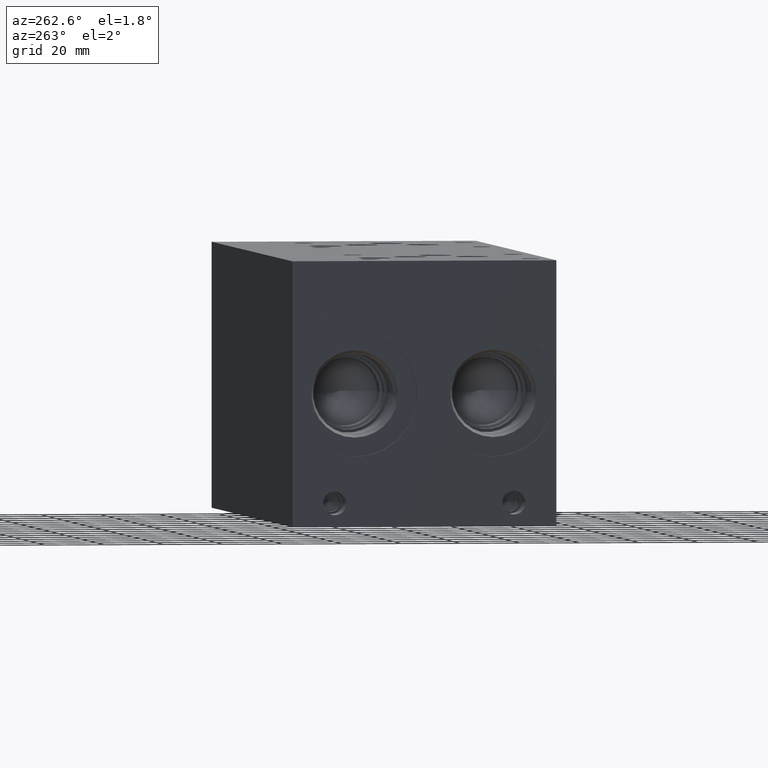
[diagram: clean part render]
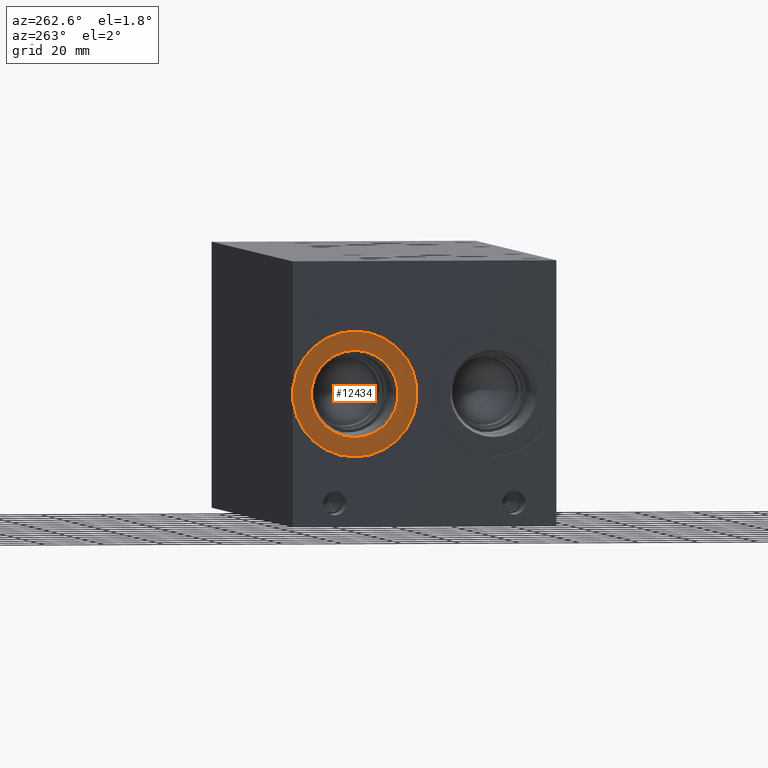
[diagram: same view with one face highlighted and labeled with its STEP entity id]
A machine part, auxiliary view. The second image highlights one B-rep face of the part: STEP entity #12434.
In plain terms, the highlighted planar face has unit normal (1, 0, 0).
Its self-contained STEP definition (entity closure, byte-faithful):
#410=CIRCLE('',#13195,21.0185);
#411=CIRCLE('',#13196,21.0185);
#412=CIRCLE('',#13198,14.5923);
#413=CIRCLE('',#13199,14.5923);
#520=FACE_BOUND('',#2235,.T.);
#881=PLANE('',#13197);
#1509=FACE_OUTER_BOUND('',#2234,.T.);
#2234=EDGE_LOOP('',(#11040,#11041));
#2235=EDGE_LOOP('',(#11042,#11043));
#5989=VERTEX_POINT('',#21439);
#5990=VERTEX_POINT('',#21441);
#5991=VERTEX_POINT('',#21445);
#5992=VERTEX_POINT('',#21446);
#7702=EDGE_CURVE('',#5989,#5990,#410,.T.);
#7703=EDGE_CURVE('',#5990,#5989,#411,.T.);
#7704=EDGE_CURVE('',#5991,#5992,#412,.T.);
#7705=EDGE_CURVE('',#5992,#5991,#413,.T.);
#11040=ORIENTED_EDGE('',*,*,#7703,.F.);
#11041=ORIENTED_EDGE('',*,*,#7702,.F.);
#11042=ORIENTED_EDGE('',*,*,#7704,.T.);
#11043=ORIENTED_EDGE('',*,*,#7705,.T.);
#12434=ADVANCED_FACE('',(#1509,#520),#881,.F.);
#13195=AXIS2_PLACEMENT_3D('',#21442,#15793,#15794);
#13196=AXIS2_PLACEMENT_3D('',#21443,#15795,#15796);
#13197=AXIS2_PLACEMENT_3D('',#21444,#15797,#15798);
#13198=AXIS2_PLACEMENT_3D('',#21447,#15799,#15800);
#13199=AXIS2_PLACEMENT_3D('',#21448,#15801,#15802);
#15793=DIRECTION('center_axis',(1.,0.,0.));
#15794=DIRECTION('ref_axis',(0.,0.,-1.));
#15795=DIRECTION('center_axis',(1.,0.,0.));
#15796=DIRECTION('ref_axis',(0.,0.,-1.));
#15797=DIRECTION('center_axis',(1.,0.,0.));
#15798=DIRECTION('ref_axis',(0.,0.,-1.));
#15799=DIRECTION('center_axis',(1.,0.,0.));
#15800=DIRECTION('ref_axis',(0.,0.,-1.));
#15801=DIRECTION('center_axis',(1.,0.,0.));
#15802=DIRECTION('ref_axis',(0.,0.,-1.));
#21439=CARTESIAN_POINT('',(0.7874,67.818,23.4315));
#21441=CARTESIAN_POINT('',(0.7874,67.818,65.4685));
#21442=CARTESIAN_POINT('Origin',(0.7874,67.818,44.45));
#21443=CARTESIAN_POINT('Origin',(0.7874,67.818,44.45));
#21444=CARTESIAN_POINT('Origin',(0.7874,67.818,59.0423));
#21445=CARTESIAN_POINT('',(0.7874,67.818,59.0423));
#21446=CARTESIAN_POINT('',(0.787399999999999,67.818,29.8577));
#21447=CARTESIAN_POINT('Origin',(0.7874,67.818,44.45));
#21448=CARTESIAN_POINT('Origin',(0.7874,67.818,44.45));